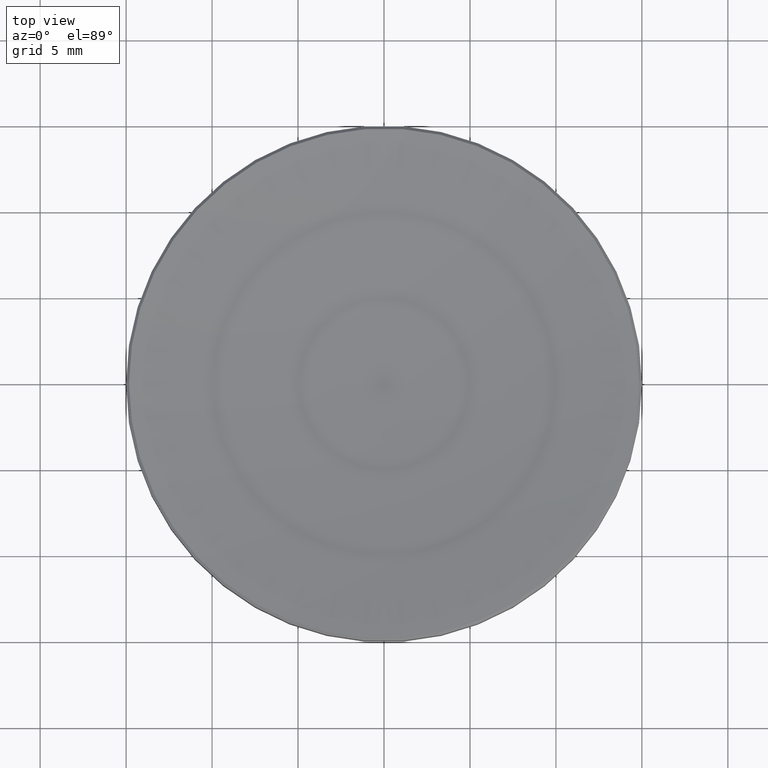
[diagram: clean part render]
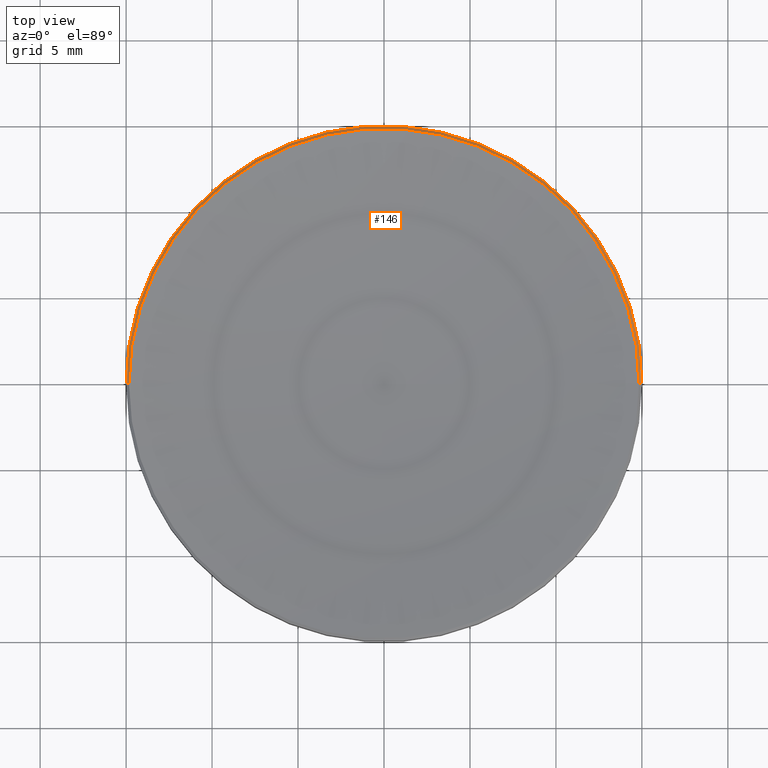
[diagram: same view with one face highlighted and labeled with its STEP entity id]
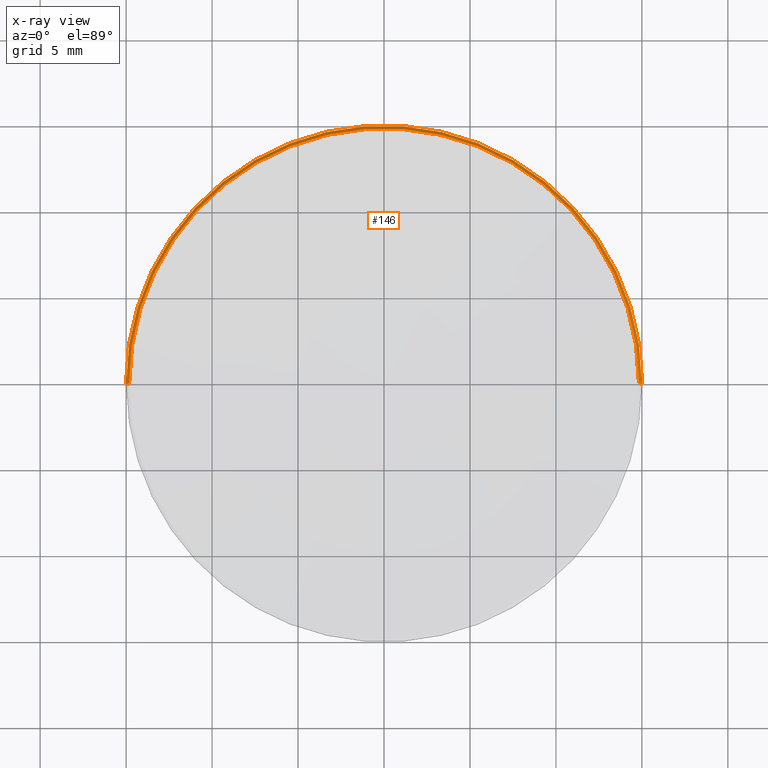
[diagram: x-ray of the same camera — body ghosted, the highlighted face saturated]
A machine part, top view. The second image highlights one B-rep face of the part: STEP entity #146.
The next image is the same camera in x-ray: the body ghosted, the highlighted face saturated — about 0% of this face is hidden behind the body in this view.
In plain terms, the highlighted conical surface has half-angle 45 deg.
Its self-contained STEP definition (entity closure, byte-faithful):
#5 = CARTESIAN_POINT ( 'NONE',  ( 0.000000000000000000, 0.000000000000000000, 3.839013704481447853 ) ) ;
#6 = VECTOR ( 'NONE', #212, 999.9999999999998863 ) ;
#15 = VERTEX_POINT ( 'NONE', #207 ) ;
#21 = VERTEX_POINT ( 'NONE', #266 ) ;
#30 = DIRECTION ( 'NONE',  ( 1.000000000000000000, 0.000000000000000000, 0.000000000000000000 ) ) ;
#33 = DIRECTION ( 'NONE',  ( -0.000000000000000000, -0.000000000000000000, 1.000000000000000000 ) ) ;
#44 = CONICAL_SURFACE ( 'NONE', #190, 14.83098629551858494, 0.7853981633974533860 ) ;
#46 = AXIS2_PLACEMENT_3D ( 'NONE', #238, #199, #120 ) ;
#47 = VERTEX_POINT ( 'NONE', #226 ) ;
#52 = DIRECTION ( 'NONE',  ( -1.000000000000000000, 0.000000000000000000, 0.000000000000000000 ) ) ;
#53 = EDGE_CURVE ( 'NONE', #86, #21, #110, .T. ) ;
#79 = CARTESIAN_POINT ( 'NONE',  ( 0.000000000000000000, 0.000000000000000000, 3.839013704481433642 ) ) ;
#80 = EDGE_CURVE ( 'NONE', #47, #86, #243, .T. ) ;
#86 = VERTEX_POINT ( 'NONE', #234 ) ;
#88 = EDGE_CURVE ( 'NONE', #47, #15, #157, .T. ) ;
#91 = DIRECTION ( 'NONE',  ( -0.7071067811865511255, 0.000000000000000000, -0.7071067811865440200 ) ) ;
#110 = LINE ( 'NONE', #173, #209 ) ;
#120 = DIRECTION ( 'NONE',  ( -1.000000000000000000, 0.000000000000000000, 0.000000000000000000 ) ) ;
#130 = ORIENTED_EDGE ( 'NONE', *, *, #53, .F. ) ;
#144 = AXIS2_PLACEMENT_3D ( 'NONE', #5, #33, #30 ) ;
#146 = ADVANCED_FACE ( 'NONE', ( #216 ), #44, .T. ) ;
#157 = LINE ( 'NONE', #253, #6 ) ;
#164 = ORIENTED_EDGE ( 'NONE', *, *, #200, .F. ) ;
#172 = ORIENTED_EDGE ( 'NONE', *, *, #80, .F. ) ;
#173 = CARTESIAN_POINT ( 'NONE',  ( -14.83098629551858494, 0.000000000000000000, 3.839013704481433642 ) ) ;
#186 = ORIENTED_EDGE ( 'NONE', *, *, #88, .T. ) ;
#190 = AXIS2_PLACEMENT_3D ( 'NONE', #79, #213, #52 ) ;
#199 = DIRECTION ( 'NONE',  ( 0.000000000000000000, 0.000000000000000000, -1.000000000000000000 ) ) ;
#200 = EDGE_CURVE ( 'NONE', #21, #15, #235, .T. ) ;
#207 = CARTESIAN_POINT ( 'NONE',  ( 15.00000000000000000, 0.000000000000000000, 3.670000000000020357 ) ) ;
#209 = VECTOR ( 'NONE', #91, 999.9999999999998863 ) ;
#212 = DIRECTION ( 'NONE',  ( 0.7071067811865511255, 8.659560562354978464E-17, -0.7071067811865440200 ) ) ;
#213 = DIRECTION ( 'NONE',  ( 0.000000000000000000, 0.000000000000000000, -1.000000000000000000 ) ) ;
#216 = FACE_OUTER_BOUND ( 'NONE', #263, .T. ) ;
#226 = CARTESIAN_POINT ( 'NONE',  ( 14.83098629551863468, 0.000000000000000000, 3.839013704481447853 ) ) ;
#234 = CARTESIAN_POINT ( 'NONE',  ( -14.83098629551863468, 1.816271989500516018E-15, 3.839013704481447853 ) ) ;
#235 = CIRCLE ( 'NONE', #46, 15.00000000000000000 ) ;
#238 = CARTESIAN_POINT ( 'NONE',  ( 0.000000000000000000, 0.000000000000000000, 3.670000000000020357 ) ) ;
#243 = CIRCLE ( 'NONE', #144, 14.83098629551858849 ) ;
#253 = CARTESIAN_POINT ( 'NONE',  ( 14.83098629551858494, 1.816271989500509707E-15, 3.839013704481433642 ) ) ;
#263 = EDGE_LOOP ( 'NONE', ( #172, #186, #164, #130 ) ) ;
#266 = CARTESIAN_POINT ( 'NONE',  ( -15.00000000000000000, 1.836970198721029589E-15, 3.670000000000020357 ) ) ;